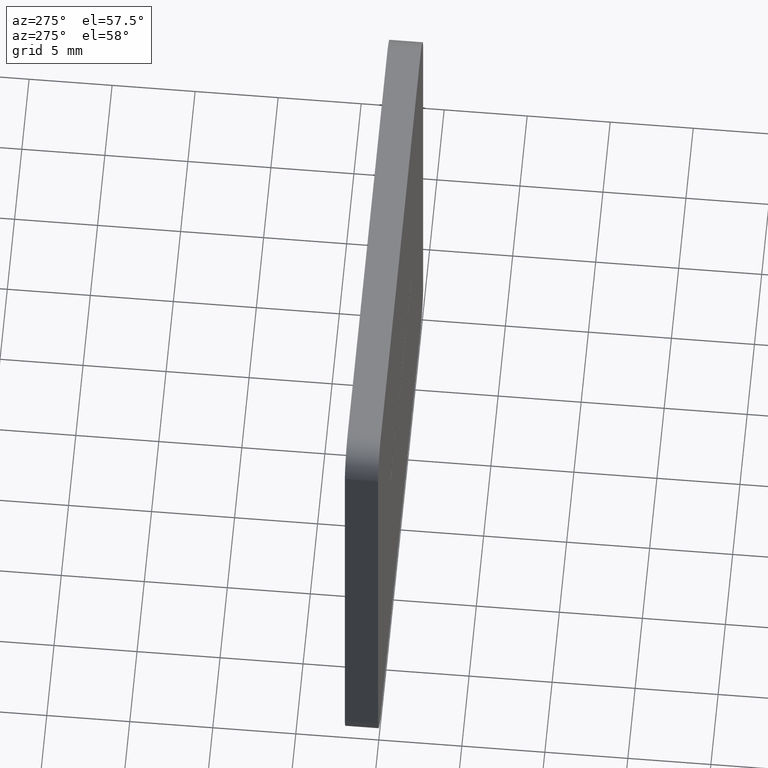
[diagram: clean part render]
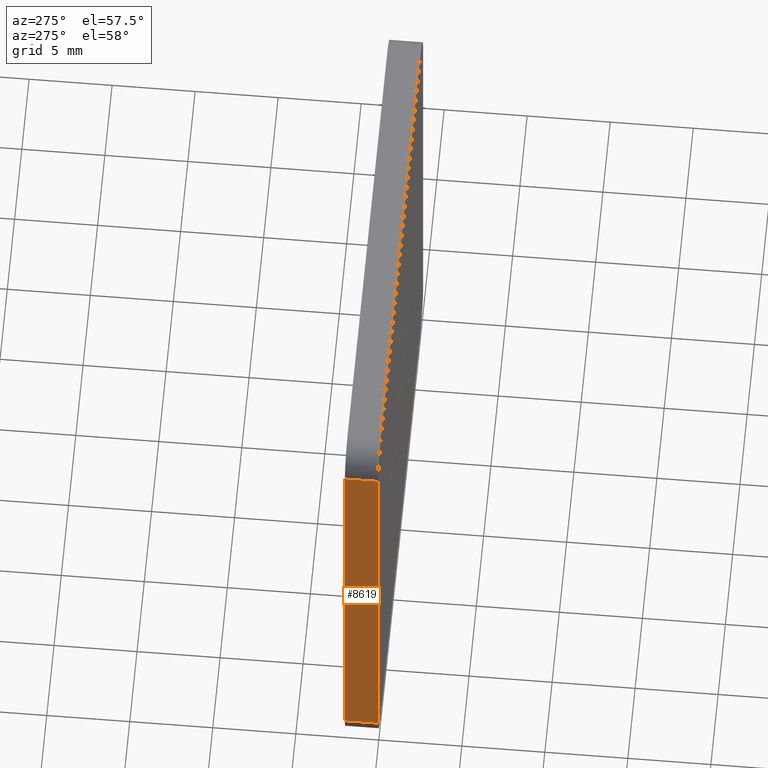
[diagram: same view with one face highlighted and labeled with its STEP entity id]
A machine part, auxiliary view. The second image highlights one B-rep face of the part: STEP entity #8619.
In plain terms, the highlighted planar face has unit normal (1, 0, -0).
Its self-contained STEP definition (entity closure, byte-faithful):
#1702 = FACE_OUTER_BOUND ( 'NONE', #16391, .T. ) ;
#2384 = VERTEX_POINT ( 'NONE', #9890 ) ;
#2914 = ORIENTED_EDGE ( 'NONE', *, *, #12182, .T. ) ;
#3096 = CARTESIAN_POINT ( 'NONE',  ( -15.50000000000000200, 2.000000000000000000, -13.49999999999999800 ) ) ;
#3335 = DIRECTION ( 'NONE',  ( 1.000000000000000000, 0.0000000000000000000, -1.119176436114069100E-016 ) ) ;
#3792 = LINE ( 'NONE', #3096, #4018 ) ;
#4018 = VECTOR ( 'NONE', #16466, 1000.000000000000000 ) ;
#4684 = DIRECTION ( 'NONE',  ( -1.119176436114069100E-016, 0.0000000000000000000, -1.000000000000000000 ) ) ;
#5034 = CARTESIAN_POINT ( 'NONE',  ( -15.50000000000000200, 0.0000000000000000000, -15.49999999999999800 ) ) ;
#5074 = EDGE_CURVE ( 'NONE', #6001, #2384, #3792, .T. ) ;
#5399 = ORIENTED_EDGE ( 'NONE', *, *, #8867, .F. ) ;
#5681 = ORIENTED_EDGE ( 'NONE', *, *, #16625, .T. ) ;
#6001 = VERTEX_POINT ( 'NONE', #14513 ) ;
#6380 = LINE ( 'NONE', #17099, #13154 ) ;
#7208 = PLANE ( 'NONE',  #17034 ) ;
#7438 = DIRECTION ( 'NONE',  ( -0.0000000000000000000, 1.000000000000000000, -0.0000000000000000000 ) ) ;
#7738 = VECTOR ( 'NONE', #7936, 1000.000000000000000 ) ;
#7936 = DIRECTION ( 'NONE',  ( 1.119176436114069100E-016, 0.0000000000000000000, 1.000000000000000000 ) ) ;
#8038 = CARTESIAN_POINT ( 'NONE',  ( -15.49999999999999800, 2.000000000000000000, 13.50000000000000700 ) ) ;
#8619 = ADVANCED_FACE ( 'NONE', ( #1702 ), #7208, .F. ) ;
#8784 = DIRECTION ( 'NONE',  ( 1.119176436114069100E-016, 0.0000000000000000000, 1.000000000000000000 ) ) ;
#8867 = EDGE_CURVE ( 'NONE', #6001, #13766, #14132, .T. ) ;
#9890 = CARTESIAN_POINT ( 'NONE',  ( -15.50000000000000200, 0.0000000000000000000, -13.49999999999999800 ) ) ;
#10969 = ORIENTED_EDGE ( 'NONE', *, *, #5074, .T. ) ;
#11341 = LINE ( 'NONE', #5034, #7738 ) ;
#11687 = CARTESIAN_POINT ( 'NONE',  ( -15.50000000000000200, 2.000000000000000000, -15.49999999999999800 ) ) ;
#11715 = VERTEX_POINT ( 'NONE', #14604 ) ;
#12182 = EDGE_CURVE ( 'NONE', #11715, #13766, #6380, .T. ) ;
#12600 = CARTESIAN_POINT ( 'NONE',  ( -15.50000000000000200, 2.000000000000000000, -15.49999999999999800 ) ) ;
#13154 = VECTOR ( 'NONE', #7438, 1000.000000000000000 ) ;
#13766 = VERTEX_POINT ( 'NONE', #8038 ) ;
#14132 = LINE ( 'NONE', #11687, #14772 ) ;
#14513 = CARTESIAN_POINT ( 'NONE',  ( -15.50000000000000200, 2.000000000000000000, -13.49999999999999800 ) ) ;
#14604 = CARTESIAN_POINT ( 'NONE',  ( -15.49999999999999800, 0.0000000000000000000, 13.50000000000000700 ) ) ;
#14772 = VECTOR ( 'NONE', #8784, 1000.000000000000000 ) ;
#16391 = EDGE_LOOP ( 'NONE', ( #5681, #2914, #5399, #10969 ) ) ;
#16466 = DIRECTION ( 'NONE',  ( 0.0000000000000000000, -1.000000000000000000, 0.0000000000000000000 ) ) ;
#16625 = EDGE_CURVE ( 'NONE', #2384, #11715, #11341, .T. ) ;
#17034 = AXIS2_PLACEMENT_3D ( 'NONE', #12600, #3335, #4684 ) ;
#17099 = CARTESIAN_POINT ( 'NONE',  ( -15.49999999999999800, 2.000000000000000000, 13.50000000000000700 ) ) ;